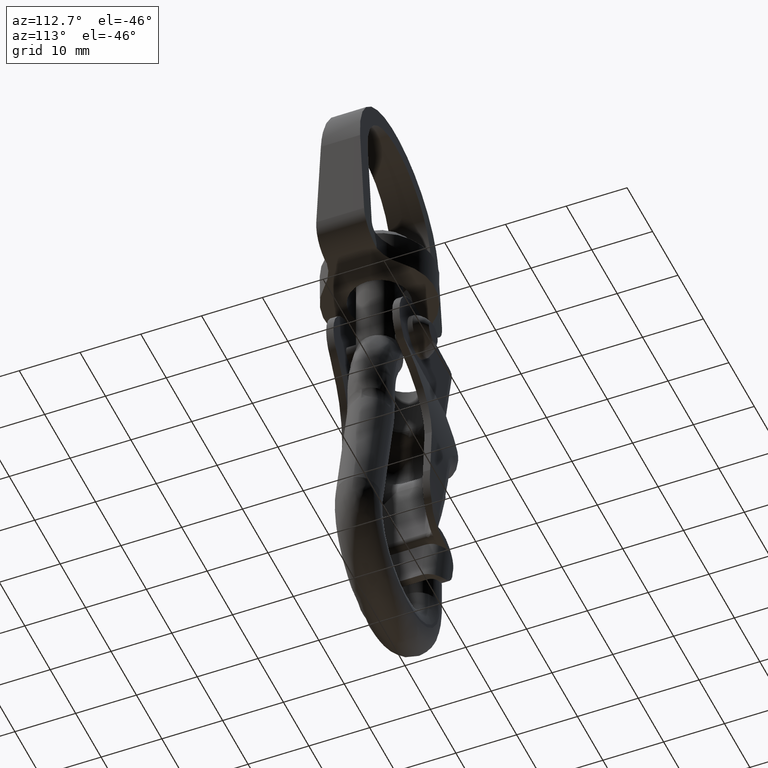
[diagram: clean part render]
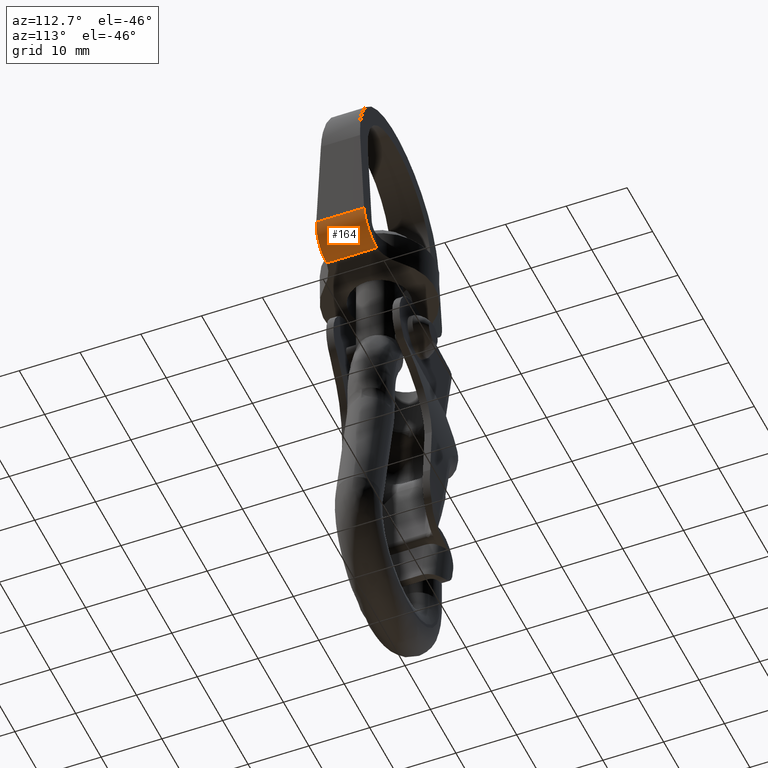
[diagram: same view with one face highlighted and labeled with its STEP entity id]
A machine part, auxiliary view. The second image highlights one B-rep face of the part: STEP entity #164.
In plain terms, the highlighted cylindrical surface (edge-blend (fillet) strip) has radius 4.5 mm, axis along (-0, -1, -0).
Its self-contained STEP definition (entity closure, byte-faithful):
#164=ADVANCED_FACE('',(#467),#466,.T.);
#466=CYLINDRICAL_SURFACE('',#2051,4.50000000000E+00);
#467=FACE_OUTER_BOUND('',#2052,.T.);
#2048=CARTESIAN_POINT('',(1.10000707828E+01,-9.90920634921E+02,-3.16011490366E+01));
#2049=DIRECTION('',(-0.00000000000E+00,-1.00000000000E+00,-0.00000000000E+00));
#2050=DIRECTION('',(-0.00000000000E+00,0.00000000000E+00,-1.00000000000E+00));
#2051=AXIS2_PLACEMENT_3D('',#2048,#2049,#2050);
#2052=EDGE_LOOP('',(#4007,#4008,#4009,#4010,#4011,#4012));
#4007=ORIENTED_EDGE('',*,*,#4842,.T.);
#4008=ORIENTED_EDGE('',*,*,#4862,.T.);
#4009=ORIENTED_EDGE('',*,*,#4834,.T.);
#4010=ORIENTED_EDGE('',*,*,#4863,.F.);
#4011=ORIENTED_EDGE('',*,*,#4855,.T.);
#4012=ORIENTED_EDGE('',*,*,#4864,.T.);
#4834=EDGE_CURVE('',#5527,#5520,#5528,.T.);
#4842=EDGE_CURVE('',#5464,#5437,#5581,.T.);
#4855=EDGE_CURVE('',#5668,#5661,#5669,.T.);
#4862=EDGE_CURVE('',#5437,#5527,#5713,.T.);
#4863=EDGE_CURVE('',#5668,#5520,#5719,.T.);
#4864=EDGE_CURVE('',#5661,#5464,#5725,.T.);
#5437=VERTEX_POINT('',#8302);
#5464=VERTEX_POINT('',#8319);
#5520=VERTEX_POINT('',#8355);
#5527=VERTEX_POINT('',#8359);
#5528=(BOUNDED_CURVE() B_SPLINE_CURVE(2,(#8360,#8361,#8362,#8363,#8364),.UNSPECIFIED.,.F.,.F.) B_SPLINE_CURVE_WITH_KNOTS((3,2,3),(0.00000000000E+00,7.88916527389E-01,1.57831743293E+00),.UNSPECIFIED.) CURVE() GEOMETRIC_REPRESENTATION_ITEM() RATIONAL_B_SPLINE_CURVE((1.00000000000E+00,9.23158349098E-01,1.00000000000E+00,9.23158349098E-01,1.00000000000E+00)) REPRESENTATION_ITEM('') );
#5581=LINE('',#8397,#8398);
#5661=VERTEX_POINT('',#8451);
#5668=VERTEX_POINT('',#8455);
#5669=(BOUNDED_CURVE() B_SPLINE_CURVE(2,(#8456,#8457,#8458,#8459,#8460),.UNSPECIFIED.,.F.,.F.) B_SPLINE_CURVE_WITH_KNOTS((3,2,3),(1.56327522066E+00,2.35267612620E+00,3.14159265359E+00),.UNSPECIFIED.) CURVE() GEOMETRIC_REPRESENTATION_ITEM() RATIONAL_B_SPLINE_CURVE((1.00000000000E+00,9.23158349098E-01,1.00000000000E+00,9.23158349098E-01,1.00000000000E+00)) REPRESENTATION_ITEM('') );
#5713=LINE('',#8482,#8483);
#5719=LINE('',#8485,#8486);
#5725=LINE('',#8488,#8489);
#8302=CARTESIAN_POINT('',(1.10000707828E+01,4.08166525539E+00,-3.61011490366E+01));
#8319=CARTESIAN_POINT('',(1.10000707828E+01,-4.08166525539E+00,-3.61011490366E+01));
#8355=CARTESIAN_POINT('',(1.54999435076E+01,3.93283536672E+00,-3.15673043780E+01));
#8359=CARTESIAN_POINT('',(1.10000707828E+01,4.12917507298E+00,-3.61011490398E+01));
#8360=CARTESIAN_POINT('',(1.10000707828E+01,4.12917507284E+00,-3.61011490366E+01));
#8361=CARTESIAN_POINT('',(1.28739525162E+01,4.12917507284E+00,-3.61011490366E+01));
#8362=CARTESIAN_POINT('',(1.41939947772E+01,4.07157861946E+00,-3.47711410741E+01));
#8363=CARTESIAN_POINT('',(1.55140370381E+01,4.01398216609E+00,-3.34411331117E+01));
#8364=CARTESIAN_POINT('',(1.54999435076E+01,3.93283536672E+00,-3.15673043780E+01));
#8397=CARTESIAN_POINT('',(1.10000707828E+01,-4.08166525539E+00,-3.61011490366E+01));
#8398=VECTOR('',#8399,8.16333051077E+00);
#8399=DIRECTION('',(4.56964146903E-15,1.00000000000E+00,0.00000000000E+00));
#8451=CARTESIAN_POINT('',(1.10000707828E+01,-4.12917507298E+00,-3.61011490398E+01));
#8455=CARTESIAN_POINT('',(1.54999435076E+01,-3.93283536672E+00,-3.15673043780E+01));
#8456=CARTESIAN_POINT('',(1.54999435076E+01,-3.93283536672E+00,-3.15673043780E+01));
#8457=CARTESIAN_POINT('',(1.55140370381E+01,-4.01398216609E+00,-3.34411331117E+01));
#8458=CARTESIAN_POINT('',(1.41939947772E+01,-4.07157861946E+00,-3.47711410741E+01));
#8459=CARTESIAN_POINT('',(1.28739525162E+01,-4.12917507284E+00,-3.61011490366E+01));
#8460=CARTESIAN_POINT('',(1.10000707828E+01,-4.12917507284E+00,-3.61011490366E+01));
#8482=CARTESIAN_POINT('',(1.10000707828E+01,4.08166525539E+00,-3.61011490366E+01));
#8483=VECTOR('',#8484,4.75098175912E-02);
#8484=DIRECTION('',(0.00000000000E+00,1.00000000000E+00,0.00000000000E+00));
#8485=CARTESIAN_POINT('',(1.54999435076E+01,-3.93283536672E+00,-3.15673043780E+01));
#8486=VECTOR('',#8487,7.86567073343E+00);
#8487=DIRECTION('',(0.00000000000E+00,1.00000000000E+00,0.00000000000E+00));
#8488=CARTESIAN_POINT('',(1.10000707828E+01,-4.12917507298E+00,-3.61011490366E+01));
#8489=VECTOR('',#8490,4.75098175920E-02);
#8490=DIRECTION('',(0.00000000000E+00,1.00000000000E+00,0.00000000000E+00));